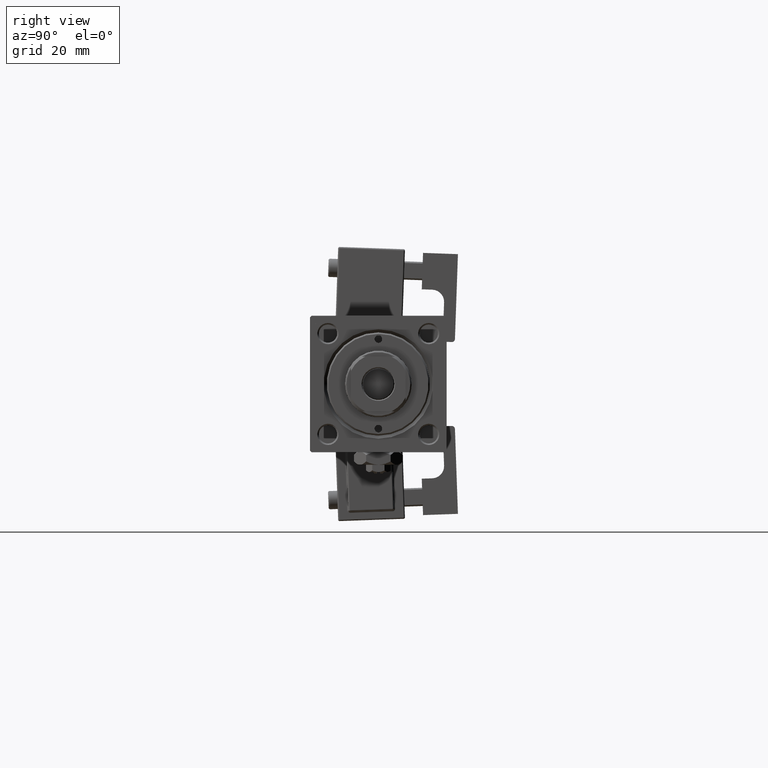
[diagram: clean part render]
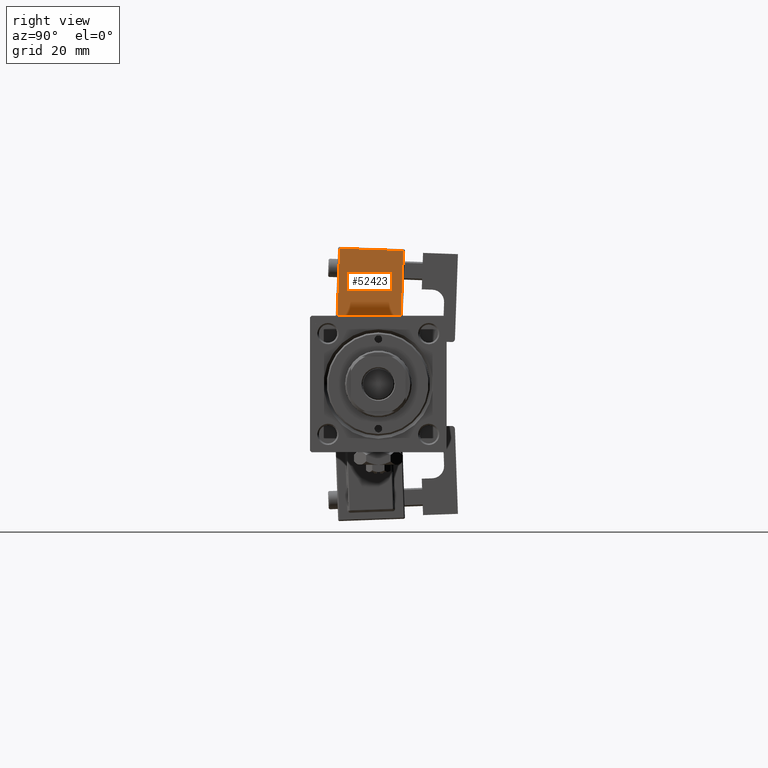
[diagram: same view with one face highlighted and labeled with its STEP entity id]
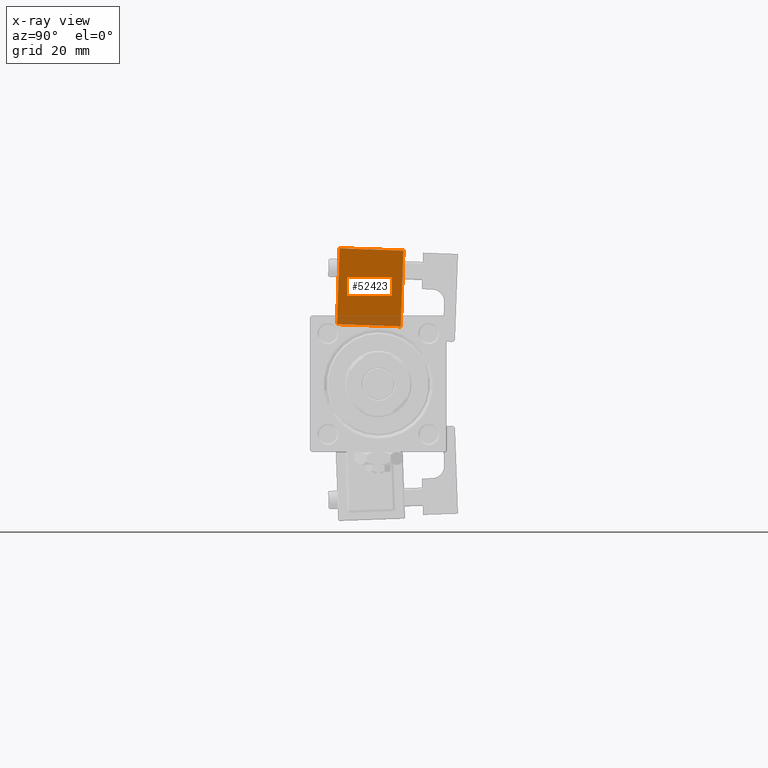
[diagram: x-ray of the same camera — body ghosted, the highlighted face saturated]
A machine part, right view. The second image highlights one B-rep face of the part: STEP entity #52423.
The next image is the same camera in x-ray: the body ghosted, the highlighted face saturated — about 13% of this face is hidden behind the body in this view.
In plain terms, the highlighted planar face has unit normal (-1, 0, 0).
Its self-contained STEP definition (entity closure, byte-faithful):
#1481 = DIRECTION ( 'NONE',  ( -1.334402673828313093E-16, 0.000000000000000000, -1.000000000000000000 ) ) ;
#2227 = VERTEX_POINT ( 'NONE', #18767 ) ;
#3374 = DIRECTION ( 'NONE',  ( -0.000000000000000000, -1.000000000000000000, -0.000000000000000000 ) ) ;
#3486 = CARTESIAN_POINT ( 'NONE',  ( -8.750000000000000000, -33.25000000000000000, 25.00000000000000000 ) ) ;
#4735 = DIRECTION ( 'NONE',  ( 1.000000000000000000, 0.000000000000000000, -1.334402673828313093E-16 ) ) ;
#11377 = EDGE_LOOP ( 'NONE', ( #27043, #12830, #35329, #47342 ) ) ;
#12830 = ORIENTED_EDGE ( 'NONE', *, *, #20105, .T. ) ;
#14881 = CARTESIAN_POINT ( 'NONE',  ( -8.750000000000000000, -33.75000000000000000, 24.50000000000000000 ) ) ;
#15525 = CARTESIAN_POINT ( 'NONE',  ( -8.750000000000003553, -33.75000000000000000, -0.5000000000000004441 ) ) ;
#18255 = VECTOR ( 'NONE', #3374, 1000.000000000000000 ) ;
#18563 = FACE_OUTER_BOUND ( 'NONE', #11377, .T. ) ;
#18767 = CARTESIAN_POINT ( 'NONE',  ( -8.750000000000000000, -33.25000000000000000, 24.50000000000000000 ) ) ;
#20014 = EDGE_CURVE ( 'NONE', #46306, #51202, #46803, .T. ) ;
#20105 = EDGE_CURVE ( 'NONE', #2227, #50809, #36332, .T. ) ;
#21301 = CARTESIAN_POINT ( 'NONE',  ( -8.750000000000000000, -12.25000000000000000, 24.50000000000000000 ) ) ;
#22235 = PLANE ( 'NONE',  #27644 ) ;
#22918 = CARTESIAN_POINT ( 'NONE',  ( -8.750000000000003553, -12.25000000000000000, -1.000000000000000888 ) ) ;
#27043 = ORIENTED_EDGE ( 'NONE', *, *, #45390, .T. ) ;
#27155 = LINE ( 'NONE', #22918, #28328 ) ;
#27644 = AXIS2_PLACEMENT_3D ( 'NONE', #43385, #4735, #35201 ) ;
#28328 = VECTOR ( 'NONE', #1481, 1000.000000000000000 ) ;
#29092 = VECTOR ( 'NONE', #35496, 1000.000000000000000 ) ;
#30179 = CARTESIAN_POINT ( 'NONE',  ( -8.750000000000003553, -12.25000000000000000, -0.5000000000000001110 ) ) ;
#35201 = DIRECTION ( 'NONE',  ( -1.334402673828313093E-16, 0.000000000000000000, -1.000000000000000000 ) ) ;
#35329 = ORIENTED_EDGE ( 'NONE', *, *, #43440, .T. ) ;
#35496 = DIRECTION ( 'NONE',  ( 0.000000000000000000, 1.000000000000000000, 0.000000000000000000 ) ) ;
#36332 = LINE ( 'NONE', #14881, #29092 ) ;
#37910 = DIRECTION ( 'NONE',  ( 1.334402673828313093E-16, -0.000000000000000000, 1.000000000000000000 ) ) ;
#39179 = VECTOR ( 'NONE', #37910, 1000.000000000000000 ) ;
#43385 = CARTESIAN_POINT ( 'NONE',  ( -8.750000000000000000, -33.75000000000000000, 25.00000000000000000 ) ) ;
#43440 = EDGE_CURVE ( 'NONE', #50809, #46306, #27155, .T. ) ;
#44019 = CARTESIAN_POINT ( 'NONE',  ( -8.750000000000003553, -33.25000000000000000, -0.5000000000000001110 ) ) ;
#45390 = EDGE_CURVE ( 'NONE', #51202, #2227, #46369, .T. ) ;
#46306 = VERTEX_POINT ( 'NONE', #30179 ) ;
#46369 = LINE ( 'NONE', #3486, #39179 ) ;
#46803 = LINE ( 'NONE', #15525, #18255 ) ;
#47342 = ORIENTED_EDGE ( 'NONE', *, *, #20014, .T. ) ;
#50809 = VERTEX_POINT ( 'NONE', #21301 ) ;
#51202 = VERTEX_POINT ( 'NONE', #44019 ) ;
#52423 = ADVANCED_FACE ( 'NONE', ( #18563 ), #22235, .F. ) ;